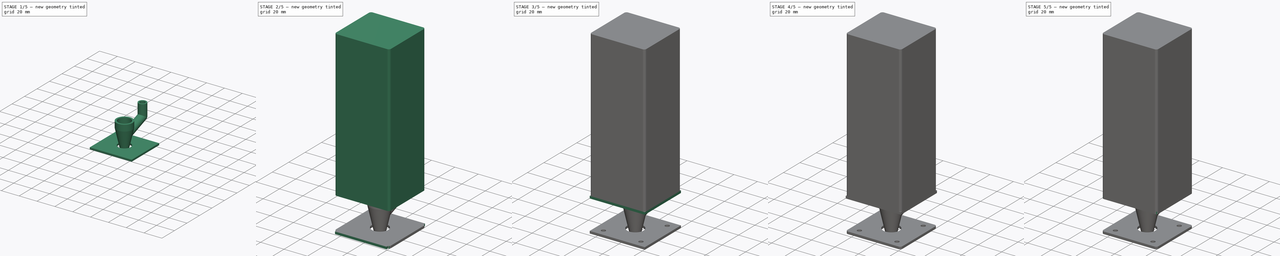
[diagram: build sequence overview — one tinted view per stage of 5, left to right]
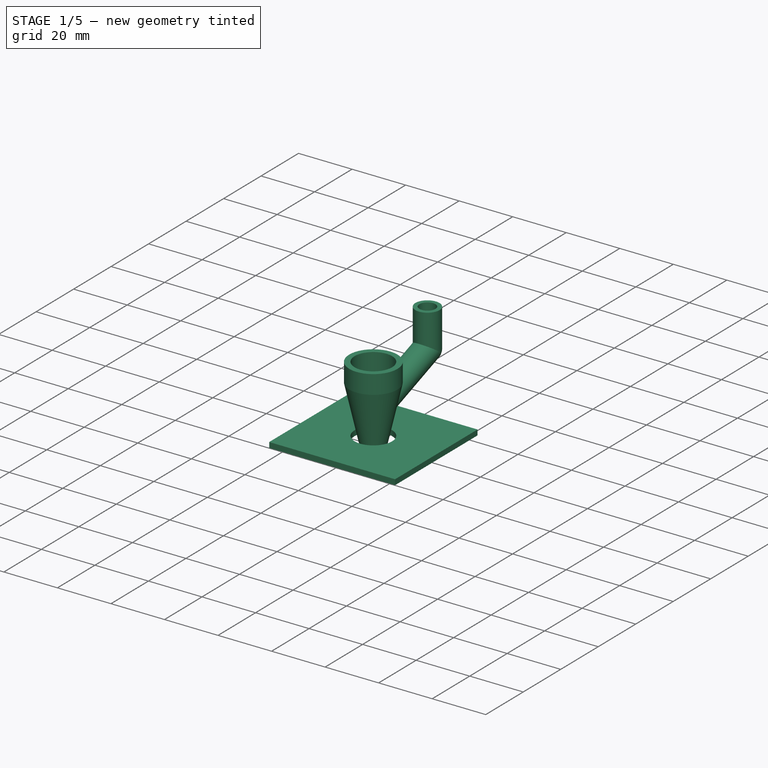
[diagram: stage 1 of 5 — iso view after this stage's code; geometry added in this stage tinted green]
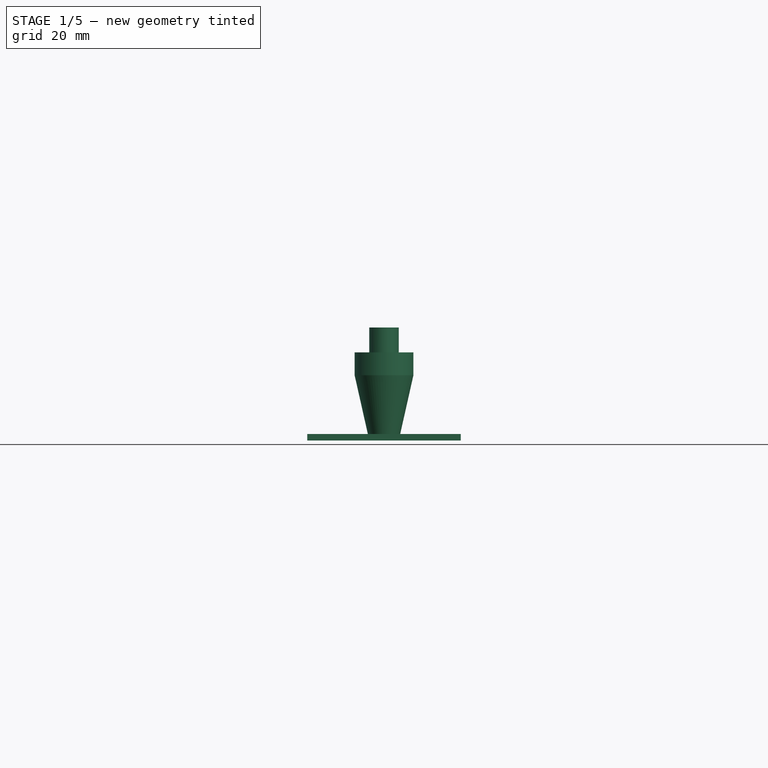
[diagram: stage 1 of 5 — front view after this stage's code; geometry added in this stage tinted green]
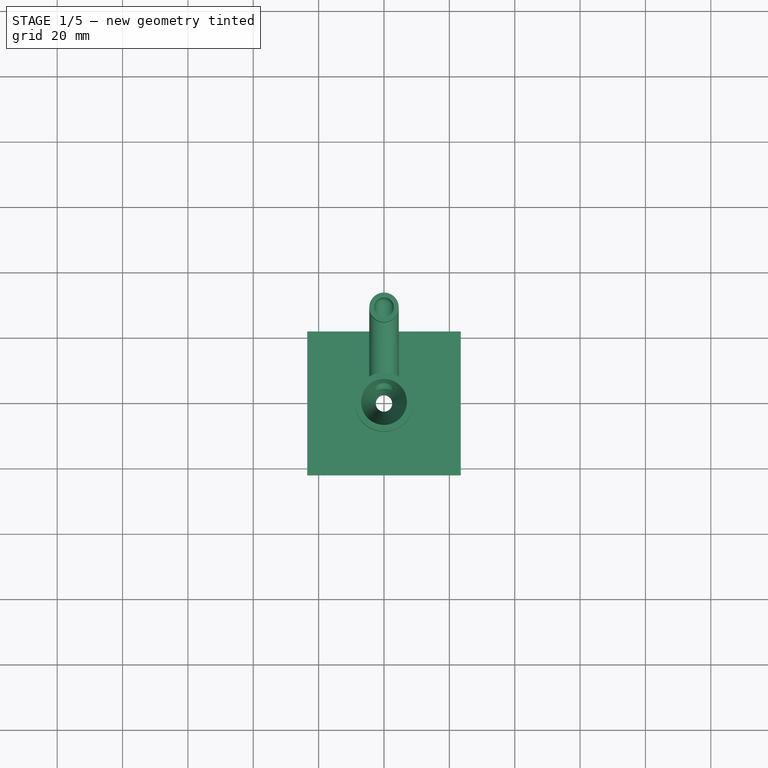
[diagram: stage 1 of 5 — top view after this stage's code; geometry added in this stage tinted green]
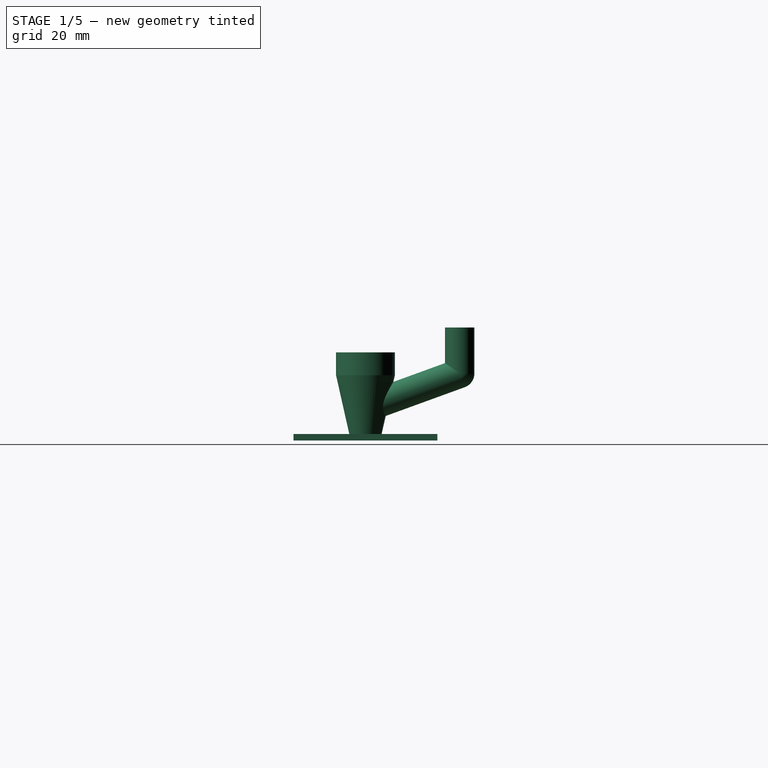
[diagram: stage 1 of 5 — right view after this stage's code; geometry added in this stage tinted green]
FCSTD DOCUMENT  (FreeCAD 0.19R24366 (Git))
Label: Air-Assist
License: All rights reserved
LicenseURL: http://en.wikipedia.org/wiki/All_rights_reserved
objects: Sketcher::SketchObject×21, PartDesign::Hole×8, PartDesign::Body×7, PartDesign::Pad×5, PartDesign::Plane×5, Part::Cone×4, Part::FeaturePython×4, PartDesign::Pocket×4, PartDesign::LinearPattern×4, Part::MultiFuse×3, Part::MultiCommon×3, Part::Cut×2, PartDesign::AdditivePipe×2, Part::Fillet×2, App::Part×2, Part::Box×1, PartDesign::Fillet×1
note: 96 computed .brp shape members not serialized (recipe doc carries the construction recipe); baked Part::Feature solids carry a one-line shape summary decoded from their .brp

FEATURE [Sketcher::SketchObject] Sketch019
  FullyConstrained = true
  MapMode = 5
  Support = -> [XY_Plane007]
  sketch-geometry (4):
    g0: LineSegment StartX=23.5 StartY=-22 StartZ=0 EndX=-23.5 EndY=-22 EndZ=0
    g1: LineSegment StartX=-23.5 StartY=-22 StartZ=0 EndX=-23.5 EndY=22 EndZ=0
    g2: LineSegment StartX=-23.5 StartY=22 StartZ=0 EndX=23.5 EndY=22 EndZ=0
    g3: LineSegment StartX=23.5 StartY=22 StartZ=0 EndX=23.5 EndY=-22 EndZ=0
  constraints (12):
    c: Coincident(g0,g1)
    c: Coincident(g1,g2)
    c: Coincident(g2,g3)
    c: Coincident(g3,g0)
    c: Horizontal(g0)
    c: Horizontal(g2)
    c: Vertical(g1)
    c: Vertical(g3)
    c: DistanceX(g-1,g2) = 23.5
    c: DistanceX(g1,g2) = 47
    c: DistanceY(g0,g2) = 44
    c: DistanceY(g-1,g2) = 22
FEATURE [PartDesign::Pad] Pad004
  Direction = (1,1,1)
  Length = 2
  Length2 = 100
  Profile = -> Sketch019
  Type = 0
FEATURE [PartDesign::Plane] DatumPlane004
  Length = 60
  MapMode = 5
  Placement = pos=(0,0,2) rot=(0,0,1;0rad)
  ResizeMode = 0
  Support = -> [Pad004]
  Width = 60
FEATURE [Sketcher::SketchObject] Sketch017
  FullyConstrained = true
  MapMode = 5
  Placement = pos=(0,0,2) rot=(0,0,1;0rad)
  Support = -> [DatumPlane004]
  sketch-geometry (4):
    g0: Circle CenterX=-16 CenterY=16 CenterZ=0 NormalX=0 NormalY=0 NormalZ=1 AngleXU=0 Radius=2
    g1: Circle CenterX=16 CenterY=16 CenterZ=0 NormalX=0 NormalY=0 NormalZ=1 AngleXU=0 Radius=2
    g2: Circle CenterX=-16 CenterY=-16 CenterZ=0 NormalX=0 NormalY=0 NormalZ=1 AngleXU=0 Radius=2
    g3: Circle CenterX=16 CenterY=-16 CenterZ=0 NormalX=0 NormalY=0 NormalZ=1 AngleXU=0 Radius=2
  constraints (12):
    c: DistanceX(g0,g-1) = 16
    c: DistanceY(g-1,g0) = 16
    c: DistanceX(g-1,g1) = 16
    c: DistanceY(g-1,g1) = 16
    c: DistanceY(g3,g-1) = 16
    c: DistanceY(g2,g-1) = 16
    c: DistanceX(g2,g-1) = 16
    c: DistanceX(g-1,g3) = 16
    c: Radius(g3) = 2
    c: Radius(g1) = 2
    c: Radius(g0) = 2
    c: Radius(g2) = 2
FEATURE [Sketcher::SketchObject] Sketch018
  FullyConstrained = true
  MapMode = 5
  Placement = pos=(0,0,2) rot=(0,0,1;0rad)
  Support = -> [DatumPlane004]
  sketch-geometry (1):
    g0: Circle CenterX=0 CenterY=0 CenterZ=0 NormalX=0 NormalY=0 NormalZ=1 AngleXU=0 Radius=6.5
  constraints (2):
    c: Coincident(g0,g-1)
    c: Radius(g0) = 6.5
FEATURE [PartDesign::Hole] Hole008  label="Laser-Head-Hole-13mm004"
  BaseFeature = -> Pad004
  Depth = 25
  DepthType = 0
  Diameter = 14
  DrillForDepth = false
  DrillPoint = 1
  DrillPointAngle = 118
  HoleCutCountersinkAngle = 90
  HoleCutCustomValues = false
  HoleCutDepth = 0
  HoleCutDiameter = 0
  HoleCutType = 0
  ModelActualThread = false
  Profile = -> Sketch018
  Tapered = false
  TaperedAngle = 90
  ThreadAngle = 0
  ThreadClass = 0
  ThreadCutOffInner = 0
  ThreadCutOffOuter = 0
  ThreadDirection = 0
  ThreadFit = 0
  ThreadPitch = 0
  ThreadSize = 0
  ThreadType = 0
  Threaded = false
FEATURE [PartDesign::Body] Body005  label="Plate-To-Be-Edited"
  Group = -> [Sketch019,Pad004,DatumPlane004,Sketch018,Hole008,Sketch017,Hole007,Fillet002]
  Origin = -> Origin007
  Placement = pos=(0,0,27) rot=(0,0,1;3.14159rad)
  Tip = -> Fillet002
FEATURE [Part::Cone] Cone002
  Angle = 360
  AttacherType = Attacher::AttachEngine3D
  Height = 20
  Radius1 = 2.5
  Radius2 = 7
FEATURE [Sketcher::SketchObject] Sketch020
  FullyConstrained = false
  MapMode = 5
  Placement = pos=(0,0,0) rot=(0.57735,0.57735,0.57735;2.0944rad)
  Support = -> [YZ_Plane008]
  sketch-geometry (2):
    g0: LineSegment StartX=0 StartY=20 StartZ=0 EndX=28 EndY=20 EndZ=0
    g1: LineSegment StartX=28 StartY=20 StartZ=0 EndX=32.8072 EndY=33.2076 EndZ=0
  constraints (6):
    c: PointOnObject(g0,g-2)
    c: Coincident(g0,g1)
    c: DistanceY(g-1,g0) = 20
    c: Horizontal(g0)
    c: Angle(g1,g0) = 1.91986
    c: DistanceX(g0,g0) = 28
FEATURE [Part::Cone] Cone003
  Angle = 360
  AttacherType = Attacher::AttachEngine3D
  Height = 20
  Radius1 = 4.5
  Radius2 = 9
FEATURE [Part::Cut] Cut001
  Base = -> Cone003
  Tool = -> Cone002
FEATURE [Part::FeaturePython] Tube001  # WARN: FeaturePython — macro-defined, semantics opaque (R4)
  AttacherType = Attacher::AttachEngine3D
  Height = 7
  InnerRadius = 7
  OuterRadius = 9
  Placement = pos=(0,0,20) rot=(0,0,1;0rad)
FEATURE [Part::MultiFuse] Fusion002  label="Air-Cap001"
  Shapes = -> [Cut001,Tube001]
FEATURE [Sketcher::SketchObject] Sketch021
  FullyConstrained = true
  MapMode = 5
  Placement = pos=(0,0,0) rot=(1,0,0;1.5708rad)
  Support = -> [XZ_Plane008]
  sketch-geometry (2):
    g0: Circle CenterX=0 CenterY=20 CenterZ=0 NormalX=0 NormalY=0 NormalZ=1 AngleXU=0 Radius=3
    g1: Circle CenterX=0 CenterY=20 CenterZ=0 NormalX=0 NormalY=0 NormalZ=1 AngleXU=0 Radius=4.5
  constraints (5):
    c: PointOnObject(g0,g-2)
    c: DistanceY(g-1,g0) = 20
    c: Radius(g0) = 3
    c: Coincident(g1,g0)
    c: Radius(g1) = 4.5
FEATURE [PartDesign::AdditivePipe] AdditivePipe001
  AuxilleryCurvelinear = true
  AuxillerySpineTangent = false
  Binormal = (0,0,0)
  Mode = 0
  Placement = pos=(0,0,0) rot=(1,0,0;1.5708rad)
  Profile = -> Sketch021
  Spine = -> Sketch020 [Edge1,Edge2]
  SpineTangent = false
  Transformation = 0
  Transition = 2
FEATURE [PartDesign::Body] Body006  label="Air-Pipe001"
  Group = -> [Sketch021,Sketch020,AdditivePipe001]
  Origin = -> Origin008
  Placement = pos=(0,9.37702,-7.81638) rot=(1,0,0;0.349066rad)
  Tip = -> AdditivePipe001
FEATURE [Part::FeaturePython] Connect001  label="Air-Assist-Duplicate"  # WARN: FeaturePython — macro-defined, semantics opaque (R4)
  Objects = -> [Fusion002,Body006]
  Tolerance = 0
FEATURE [App::Part] Part001  label="Duplicate for edition"
  Group = -> [Body006,Fusion002,Cone002,Cut001,Cone003,Tube001,Connect001,Body005]
  Origin = -> Origin009
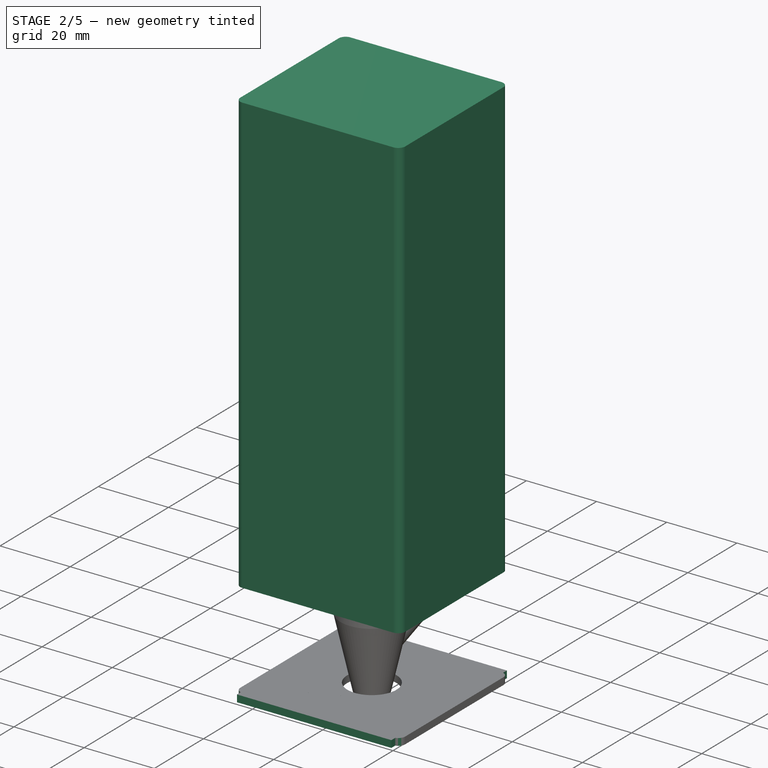
[diagram: stage 2 of 5 — iso view after this stage's code; geometry added in this stage tinted green]
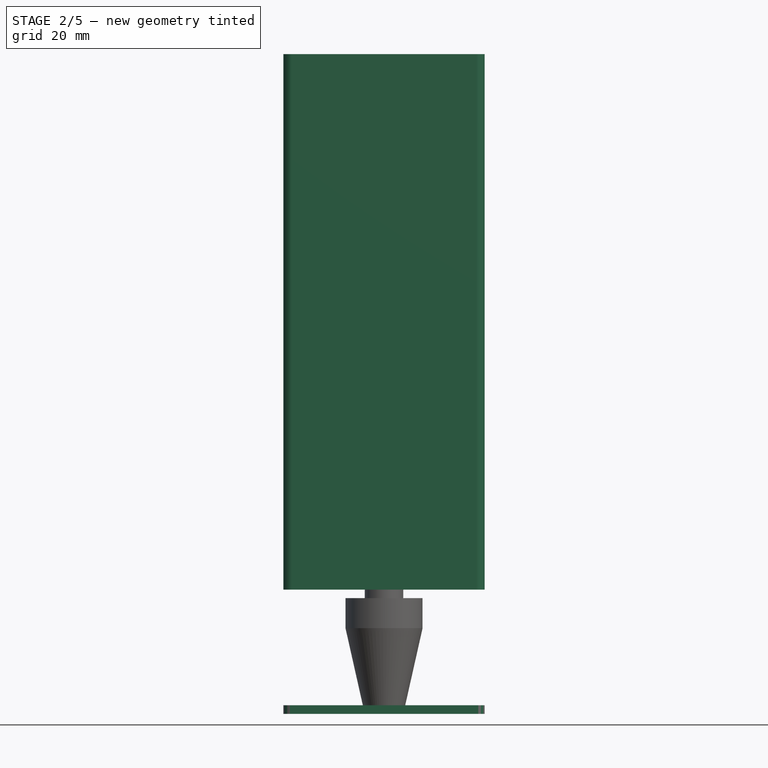
[diagram: stage 2 of 5 — front view after this stage's code; geometry added in this stage tinted green]
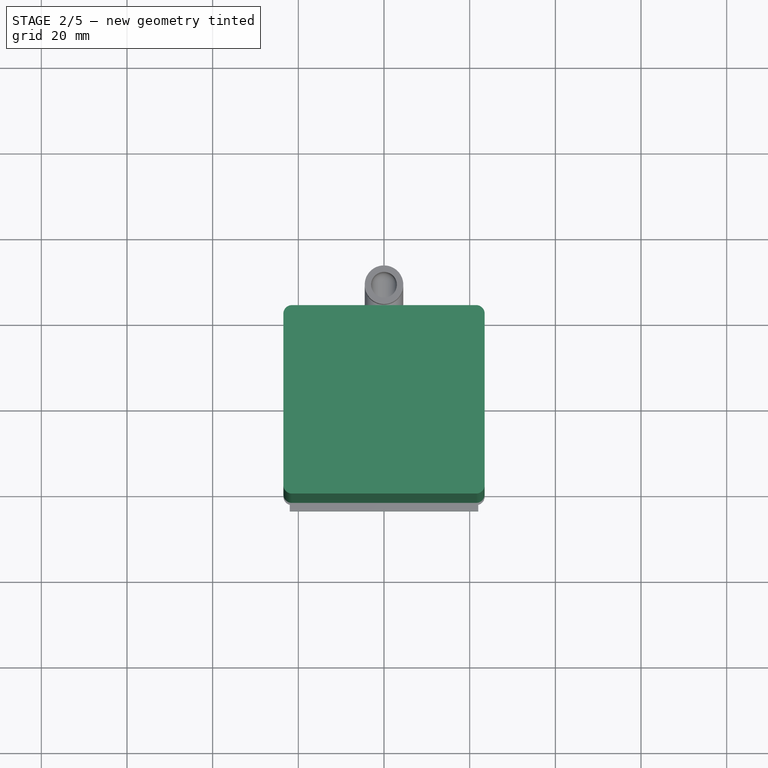
[diagram: stage 2 of 5 — top view after this stage's code; geometry added in this stage tinted green]
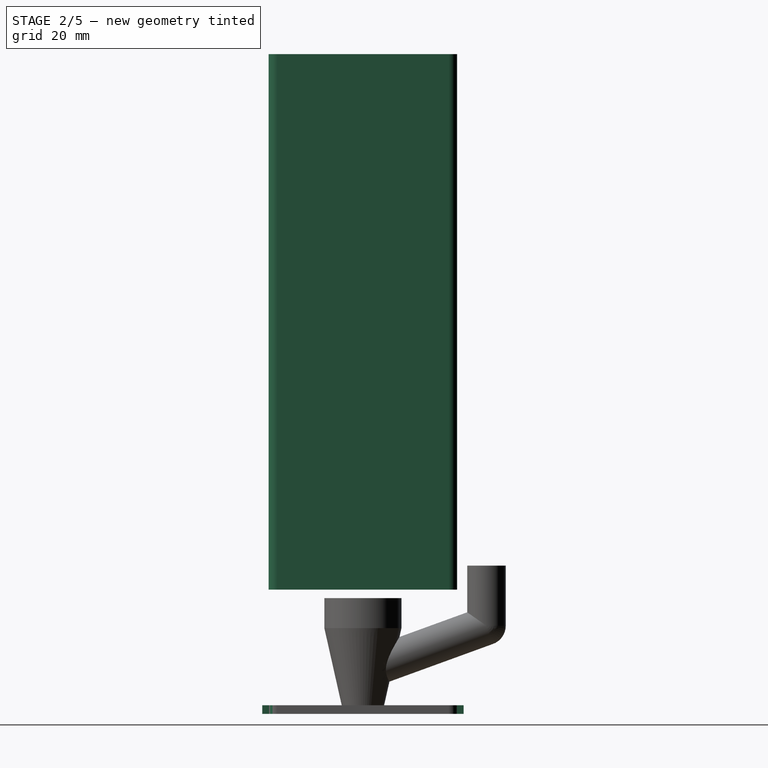
[diagram: stage 2 of 5 — right view after this stage's code; geometry added in this stage tinted green]
FEATURE [PartDesign::Body] Body003  label="Plate-copy001"
  Group = -> [Sketch013,Pad002,DatumPlane002,Sketch012,Hole005,Sketch010,Pocket002,LinearPattern002]
  Origin = -> Origin005
  Placement = pos=(0,0,27) rot=(0,0,-1;1.5708rad)
  Tip = -> LinearPattern002
FEATURE [Sketcher::SketchObject] Sketch016
  FullyConstrained = true
  MapMode = 5
  Support = -> [XY_Plane006]
  sketch-geometry (4):
    g0: LineSegment StartX=22 StartY=-23.5 StartZ=0 EndX=-22 EndY=-23.5 EndZ=0
    g1: LineSegment StartX=-22 StartY=-23.5 StartZ=0 EndX=-22 EndY=23.5 EndZ=0
    g2: LineSegment StartX=-22 StartY=23.5 StartZ=0 EndX=22 EndY=23.5 EndZ=0
    g3: LineSegment StartX=22 StartY=23.5 StartZ=0 EndX=22 EndY=-23.5 EndZ=0
  constraints (12):
    c: Coincident(g0,g1)
    c: Coincident(g1,g2)
    c: Coincident(g2,g3)
    c: Coincident(g3,g0)
    c: Horizontal(g0)
    c: Horizontal(g2)
    c: Vertical(g1)
    c: Vertical(g3)
    c: DistanceX(g-1,g2) = 22
    c: DistanceX(g1,g2) = 44
    c: DistanceY(g0,g2) = 47
    c: DistanceY(g-1,g2) = 23.5
FEATURE [PartDesign::Pad] Pad003
  Direction = (1,1,1)
  Length = 2
  Length2 = 100
  Profile = -> Sketch016
  Type = 0
FEATURE [PartDesign::Plane] DatumPlane003
  Length = 60
  MapMode = 5
  Placement = pos=(0,0,2) rot=(0,0,1;0rad)
  ResizeMode = 0
  Support = -> [Pad003]
  Width = 60
FEATURE [Sketcher::SketchObject] Sketch014
  FullyConstrained = true
  MapMode = 5
  Placement = pos=(0,0,2) rot=(0,0,1;0rad)
  Support = -> [DatumPlane003]
  sketch-geometry (1):
    g0: Circle CenterX=0 CenterY=0 CenterZ=0 NormalX=0 NormalY=0 NormalZ=1 AngleXU=0 Radius=6.5
  constraints (2):
    c: Coincident(g0,g-1)
    c: Radius(g0) = 6.5
FEATURE [PartDesign::Hole] Hole006  label="Laser-Head-Hole-13mm003"
  BaseFeature = -> Pad003
  Depth = 25
  DepthType = 0
  Diameter = 14
  DrillForDepth = false
  DrillPoint = 1
  DrillPointAngle = 118
  HoleCutCountersinkAngle = 90
  HoleCutCustomValues = false
  HoleCutDepth = 0
  HoleCutDiameter = 0
  HoleCutType = 0
  ModelActualThread = false
  Profile = -> Sketch014
  Tapered = false
  TaperedAngle = 90
  ThreadAngle = 0
  ThreadClass = 0
  ThreadCutOffInner = 0
  ThreadCutOffOuter = 0
  ThreadDirection = 0
  ThreadFit = 0
  ThreadPitch = 0
  ThreadSize = 0
  ThreadType = 0
  Threaded = false
FEATURE [Sketcher::SketchObject] Sketch015
  FullyConstrained = false
  MapMode = 5
  Placement = pos=(0,0,2) rot=(0,0,1;0rad)
  Support = -> [DatumPlane003]
  sketch-geometry (4):
    g0: ArcOfCircle CenterX=-10.9803 CenterY=-17.753 CenterZ=0 NormalX=0 NormalY=0 NormalZ=1 AngleXU=0 Radius=1.02137 StartAngle=3.14159 EndAngle=6.28319
    g1: ArcOfCircle CenterX=-10.9803 CenterY=-11.1965 CenterZ=0 NormalX=0 NormalY=0 NormalZ=1 AngleXU=0 Radius=1.02137 StartAngle=2e-16 EndAngle=3.14159
    g2: LineSegment StartX=-9.95895 StartY=-17.753 StartZ=0 EndX=-9.95895 EndY=-11.1965 EndZ=0
    g3: LineSegment StartX=-12.0017 StartY=-17.753 StartZ=0 EndX=-12.0017 EndY=-11.1965 EndZ=0
  constraints (6):
    c: Tangent(g0,g3) = 1.5708
    c: Tangent(g0,g2) = -1.5708
    c: Tangent(g2,g1) = -1.5708
    c: Tangent(g3,g1) = 1.5708
    c: Vertical(g2)
    c: Equal(g0,g1)
FEATURE [PartDesign::Pocket] Pocket003
  BaseFeature = -> Hole006
  Length = 2
  Length2 = 100
  Profile = -> Sketch015
  Type = 0
FEATURE [PartDesign::LinearPattern] LinearPattern003
  BaseFeature = -> Pocket003
  Direction = -> Sketch015 [H_Axis]
  Length = 22
  Occurrences = 8
  Originals = -> [Pocket003]
FEATURE [Part::Box] Box  label="Cube"
  AttacherType = Attacher::AttachEngine3D
  Height = 125
  Length = 47
  Placement = pos=(-23.5,-22,29) rot=(0,0,1;0rad)
  Width = 44
FEATURE [PartDesign::Hole] Hole007  label="Connection-Holes-M005"
  BaseFeature = -> Hole008
  Depth = 25
  DepthType = 0
  Diameter = 3.6
  DrillForDepth = false
  DrillPoint = 1
  DrillPointAngle = 118
  HoleCutCountersinkAngle = 90
  HoleCutCustomValues = false
  HoleCutDepth = 0
  HoleCutDiameter = 6.1
  HoleCutType = 0
  ModelActualThread = false
  Profile = -> Sketch017
  Tapered = false
  TaperedAngle = 90
  ThreadAngle = 0
  ThreadClass = 0
  ThreadCutOffInner = 0
  ThreadCutOffOuter = 0
  ThreadDirection = 0
  ThreadFit = 2
  ThreadPitch = 0
  ThreadSize = 9
  ThreadType = 1
  Threaded = false
FEATURE [Part::Fillet] Fillet001  label="LaserModule"
  Base = -> Box
  Edges = 4 edges r=2: [Edge1,Edge3,Edge5,Edge7]
FEATURE [App::Part] Part  label="Air-Assist"
  Group = -> [Cone,Cone001,Cut,Tube,Body,Fusion,Connect,Body002,Common001,Common,Common002,Body004,Body003,Body001,Fillet,Fusion001,Box,Fillet001]
  Origin = -> Origin
FEATURE [PartDesign::Fillet] Fillet002
  Base = -> Hole007 [Edge2,Edge1,Edge5,Edge8]
  BaseFeature = -> Hole007
  Radius = 2
  SupportTransform = false
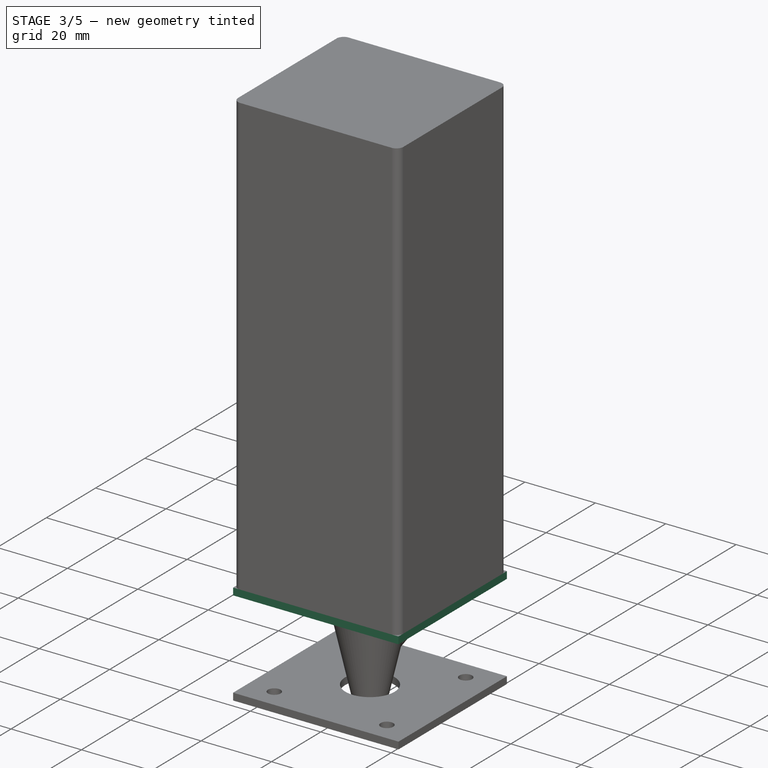
[diagram: stage 3 of 5 — iso view after this stage's code; geometry added in this stage tinted green]
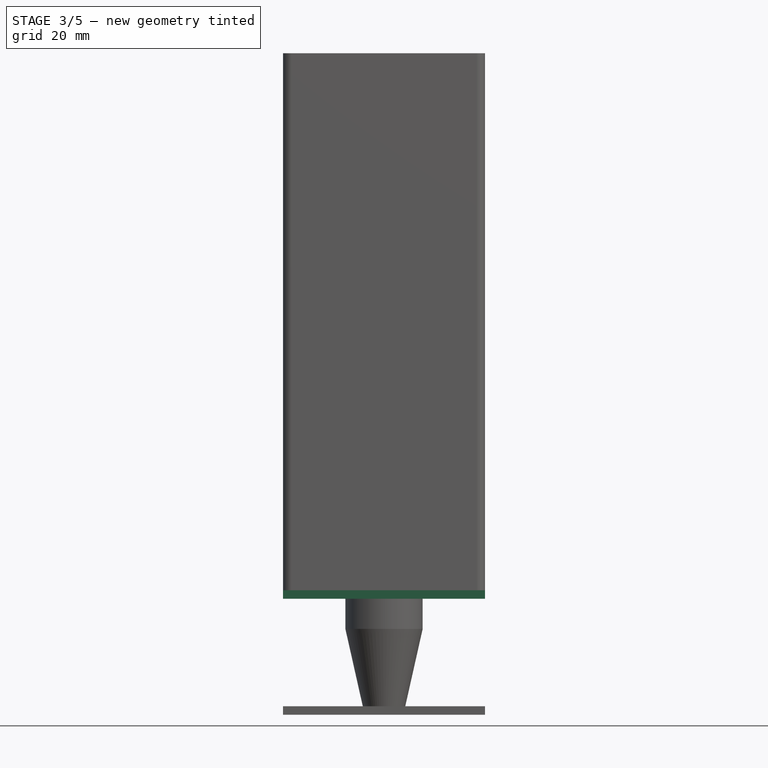
[diagram: stage 3 of 5 — front view after this stage's code; geometry added in this stage tinted green]
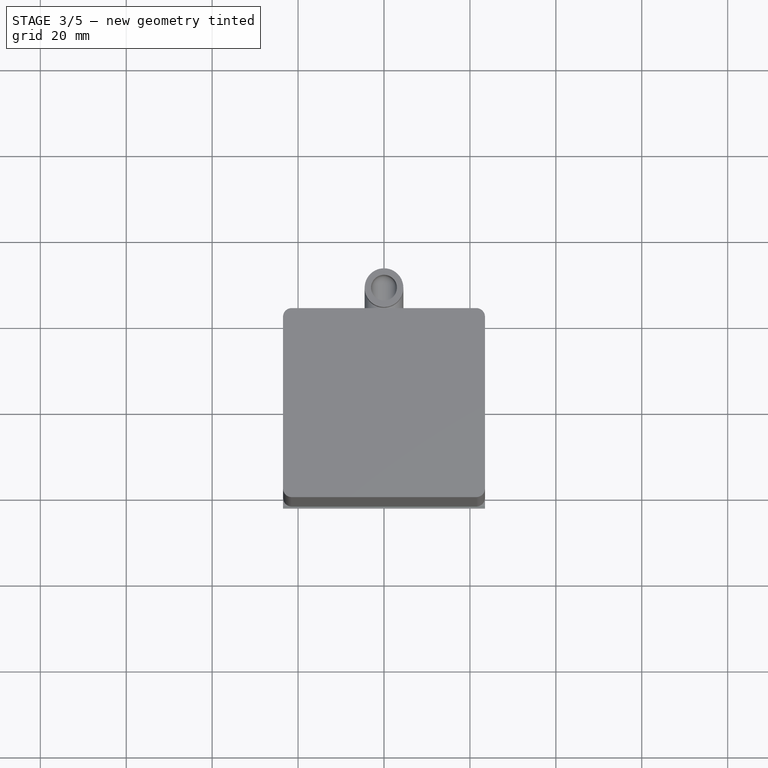
[diagram: stage 3 of 5 — top view after this stage's code; geometry added in this stage tinted green]
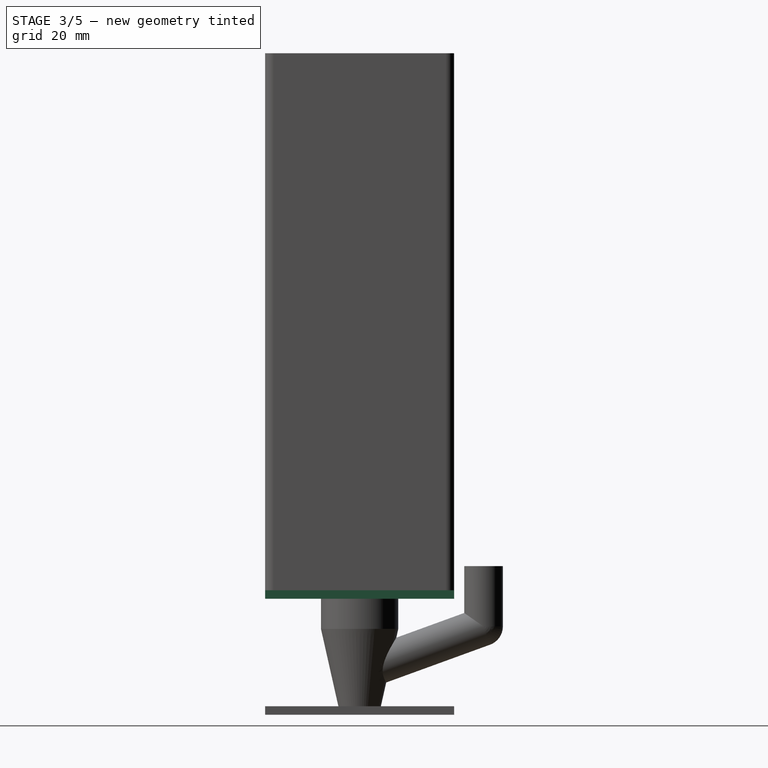
[diagram: stage 3 of 5 — right view after this stage's code; geometry added in this stage tinted green]
FEATURE [PartDesign::Body] Body001  label="Plate"
  Group = -> [Sketch002,Pad,DatumPlane,Sketch003,Hole,Sketch004,Hole001,Sketch005,Pocket,LinearPattern]
  Origin = -> Origin003
  Placement = pos=(0,0,27) rot=(0,0,1;0rad)
  Tip = -> LinearPattern
FEATURE [Sketcher::SketchObject] Sketch007
  FullyConstrained = true
  MapMode = 5
  Support = -> [XY_Plane004]
  sketch-geometry (4):
    g0: LineSegment StartX=23.5 StartY=-22 StartZ=0 EndX=-23.5 EndY=-22 EndZ=0
    g1: LineSegment StartX=-23.5 StartY=-22 StartZ=0 EndX=-23.5 EndY=22 EndZ=0
    g2: LineSegment StartX=-23.5 StartY=22 StartZ=0 EndX=23.5 EndY=22 EndZ=0
    g3: LineSegment StartX=23.5 StartY=22 StartZ=0 EndX=23.5 EndY=-22 EndZ=0
  constraints (12):
    c: Coincident(g0,g1)
    c: Coincident(g1,g2)
    c: Coincident(g2,g3)
    c: Coincident(g3,g0)
    c: Horizontal(g0)
    c: Horizontal(g2)
    c: Vertical(g1)
    c: Vertical(g3)
    c: DistanceX(g-1,g2) = 23.5
    c: DistanceX(g1,g2) = 47
    c: DistanceY(g0,g2) = 44
    c: DistanceY(g-1,g2) = 22
FEATURE [PartDesign::Pad] Pad001
  Direction = (1,1,1)
  Length = 2
  Length2 = 100
  Profile = -> Sketch007
  Type = 0
FEATURE [PartDesign::Plane] DatumPlane001
  Length = 60
  MapMode = 5
  Placement = pos=(0,0,2) rot=(0,0,1;0rad)
  ResizeMode = 0
  Support = -> [Pad001]
  Width = 60
FEATURE [Sketcher::SketchObject] Sketch006
  FullyConstrained = false
  MapMode = 5
  Placement = pos=(0,0,2) rot=(0,0,1;0rad)
  Support = -> [DatumPlane001]
  sketch-geometry (4):
    g0: ArcOfCircle CenterX=-10.9803 CenterY=-17.753 CenterZ=0 NormalX=0 NormalY=0 NormalZ=1 AngleXU=0 Radius=1.02137 StartAngle=3.14159 EndAngle=6.28319
    g1: ArcOfCircle CenterX=-10.9803 CenterY=-11.1965 CenterZ=0 NormalX=0 NormalY=0 NormalZ=1 AngleXU=0 Radius=1.02137 StartAngle=2e-16 EndAngle=3.14159
    g2: LineSegment StartX=-9.95895 StartY=-17.753 StartZ=0 EndX=-9.95895 EndY=-11.1965 EndZ=0
    g3: LineSegment StartX=-12.0017 StartY=-17.753 StartZ=0 EndX=-12.0017 EndY=-11.1965 EndZ=0
  constraints (6):
    c: Tangent(g0,g3) = 1.5708
    c: Tangent(g0,g2) = -1.5708
    c: Tangent(g2,g1) = -1.5708
    c: Tangent(g3,g1) = 1.5708
    c: Vertical(g2)
    c: Equal(g0,g1)
FEATURE [Sketcher::SketchObject] Sketch008
  FullyConstrained = true
  MapMode = 5
  Placement = pos=(0,0,2) rot=(0,0,1;0rad)
  Support = -> [DatumPlane001]
  sketch-geometry (4):
    g0: Circle CenterX=-16 CenterY=16 CenterZ=0 NormalX=0 NormalY=0 NormalZ=1 AngleXU=0 Radius=2
    g1: Circle CenterX=16 CenterY=16 CenterZ=0 NormalX=0 NormalY=0 NormalZ=1 AngleXU=0 Radius=2
    g2: Circle CenterX=-16 CenterY=-16 CenterZ=0 NormalX=0 NormalY=0 NormalZ=1 AngleXU=0 Radius=2
    g3: Circle CenterX=16 CenterY=-16 CenterZ=0 NormalX=0 NormalY=0 NormalZ=1 AngleXU=0 Radius=2
  constraints (12):
    c: DistanceX(g0,g-1) = 16
    c: DistanceY(g-1,g0) = 16
    c: DistanceX(g-1,g1) = 16
    c: DistanceY(g-1,g1) = 16
    c: DistanceY(g3,g-1) = 16
    c: DistanceY(g2,g-1) = 16
    c: DistanceX(g2,g-1) = 16
    c: DistanceX(g-1,g3) = 16
    c: Radius(g3) = 2
    c: Radius(g1) = 2
    c: Radius(g0) = 2
    c: Radius(g2) = 2
FEATURE [Sketcher::SketchObject] Sketch009
  FullyConstrained = true
  MapMode = 5
  Placement = pos=(0,0,2) rot=(0,0,1;0rad)
  Support = -> [DatumPlane001]
  sketch-geometry (1):
    g0: Circle CenterX=0 CenterY=0 CenterZ=0 NormalX=0 NormalY=0 NormalZ=1 AngleXU=0 Radius=6.5
  constraints (2):
    c: Coincident(g0,g-1)
    c: Radius(g0) = 6.5
FEATURE [PartDesign::Hole] Hole002  label="Laser-Head-Hole-13mm001"
  BaseFeature = -> Pad001
  Depth = 25
  DepthType = 0
  Diameter = 14
  DrillForDepth = false
  DrillPoint = 1
  DrillPointAngle = 118
  HoleCutCountersinkAngle = 90
  HoleCutCustomValues = false
  HoleCutDepth = 0
  HoleCutDiameter = 0
  HoleCutType = 0
  ModelActualThread = false
  Profile = -> Sketch009
  Tapered = false
  TaperedAngle = 90
  ThreadAngle = 0
  ThreadClass = 0
  ThreadCutOffInner = 0
  ThreadCutOffOuter = 0
  ThreadDirection = 0
  ThreadFit = 0
  ThreadPitch = 0
  ThreadSize = 0
  ThreadType = 0
  Threaded = false
FEATURE [PartDesign::Hole] Hole003  label="Connection-Holes-M004"
  BaseFeature = -> Hole002
  Depth = 25
  DepthType = 0
  Diameter = 3.6
  DrillForDepth = false
  DrillPoint = 1
  DrillPointAngle = 118
  HoleCutCountersinkAngle = 90
  HoleCutCustomValues = false
  HoleCutDepth = 0
  HoleCutDiameter = 6.1
  HoleCutType = 0
  ModelActualThread = false
  Profile = -> Sketch008
  Tapered = false
  TaperedAngle = 90
  ThreadAngle = 0
  ThreadClass = 0
  ThreadCutOffInner = 0
  ThreadCutOffOuter = 0
  ThreadDirection = 0
  ThreadFit = 2
  ThreadPitch = 0
  ThreadSize = 9
  ThreadType = 1
  Threaded = false
FEATURE [PartDesign::Pocket] Pocket001
  BaseFeature = -> Hole003
  Length = 2
  Length2 = 100
  Profile = -> Sketch006
  Type = 0
FEATURE [Sketcher::SketchObject] Sketch013
  FullyConstrained = true
  MapMode = 5
  Support = -> [XY_Plane005]
  sketch-geometry (4):
    g0: LineSegment StartX=22 StartY=-23.5 StartZ=0 EndX=-22 EndY=-23.5 EndZ=0
    g1: LineSegment StartX=-22 StartY=-23.5 StartZ=0 EndX=-22 EndY=23.5 EndZ=0
    g2: LineSegment StartX=-22 StartY=23.5 StartZ=0 EndX=22 EndY=23.5 EndZ=0
    g3: LineSegment StartX=22 StartY=23.5 StartZ=0 EndX=22 EndY=-23.5 EndZ=0
  constraints (12):
    c: Coincident(g0,g1)
    c: Coincident(g1,g2)
    c: Coincident(g2,g3)
    c: Coincident(g3,g0)
    c: Horizontal(g0)
    c: Horizontal(g2)
    c: Vertical(g1)
    c: Vertical(g3)
    c: DistanceX(g-1,g2) = 22
    c: DistanceX(g1,g2) = 44
    c: DistanceY(g0,g2) = 47
    c: DistanceY(g-1,g2) = 23.5
FEATURE [PartDesign::Pad] Pad002
  Direction = (1,1,1)
  Length = 2
  Length2 = 100
  Profile = -> Sketch013
  Type = 0
FEATURE [PartDesign::Plane] DatumPlane002
  Length = 60
  MapMode = 5
  Placement = pos=(0,0,2) rot=(0,0,1;0rad)
  ResizeMode = 0
  Support = -> [Pad002]
  Width = 60
FEATURE [Sketcher::SketchObject] Sketch010
  FullyConstrained = false
  MapMode = 5
  Placement = pos=(0,0,2) rot=(0,0,1;0rad)
  Support = -> [DatumPlane002]
  sketch-geometry (4):
    g0: ArcOfCircle CenterX=-10.9803 CenterY=-17.753 CenterZ=0 NormalX=0 NormalY=0 NormalZ=1 AngleXU=0 Radius=1.02137 StartAngle=3.14159 EndAngle=6.28319
    g1: ArcOfCircle CenterX=-10.9803 CenterY=-11.1965 CenterZ=0 NormalX=0 NormalY=0 NormalZ=1 AngleXU=0 Radius=1.02137 StartAngle=2e-16 EndAngle=3.14159
    g2: LineSegment StartX=-9.95895 StartY=-17.753 StartZ=0 EndX=-9.95895 EndY=-11.1965 EndZ=0
    g3: LineSegment StartX=-12.0017 StartY=-17.753 StartZ=0 EndX=-12.0017 EndY=-11.1965 EndZ=0
  constraints (6):
    c: Tangent(g0,g3) = 1.5708
    c: Tangent(g0,g2) = -1.5708
    c: Tangent(g2,g1) = -1.5708
    c: Tangent(g3,g1) = 1.5708
    c: Vertical(g2)
    c: Equal(g0,g1)
FEATURE [Sketcher::SketchObject] Sketch012
  FullyConstrained = true
  MapMode = 5
  Placement = pos=(0,0,2) rot=(0,0,1;0rad)
  Support = -> [DatumPlane002]
  sketch-geometry (1):
    g0: Circle CenterX=0 CenterY=0 CenterZ=0 NormalX=0 NormalY=0 NormalZ=1 AngleXU=0 Radius=6.5
  constraints (2):
    c: Coincident(g0,g-1)
    c: Radius(g0) = 6.5
FEATURE [PartDesign::Hole] Hole005  label="Laser-Head-Hole-13mm002"
  BaseFeature = -> Pad002
  Depth = 25
  DepthType = 0
  Diameter = 14
  DrillForDepth = false
  DrillPoint = 1
  DrillPointAngle = 118
  HoleCutCountersinkAngle = 90
  HoleCutCustomValues = false
  HoleCutDepth = 0
  HoleCutDiameter = 0
  HoleCutType = 0
  ModelActualThread = false
  Profile = -> Sketch012
  Tapered = false
  TaperedAngle = 90
  ThreadAngle = 0
  ThreadClass = 0
  ThreadCutOffInner = 0
  ThreadCutOffOuter = 0
  ThreadDirection = 0
  ThreadFit = 0
  ThreadPitch = 0
  ThreadSize = 0
  ThreadType = 0
  Threaded = false
FEATURE [PartDesign::Pocket] Pocket002
  BaseFeature = -> Hole005
  Length = 2
  Length2 = 100
  Profile = -> Sketch010
  Type = 0
FEATURE [PartDesign::LinearPattern] LinearPattern002
  BaseFeature = -> Pocket002
  Direction = -> Sketch010 [H_Axis]
  Length = 22
  Occurrences = 8
  Originals = -> [Pocket002]
FEATURE [PartDesign::Body] Body004  label="Plate-copy002"
  Group = -> [Sketch016,Pad003,DatumPlane003,Sketch014,Hole006,Sketch015,Pocket003,LinearPattern003]
  Origin = -> Origin006
  Placement = pos=(0,0,27) rot=(0,0,1;1.5708rad)
  Tip = -> LinearPattern003
FEATURE [Part::MultiCommon] Common001
  Shapes = -> [Body003,Body004]
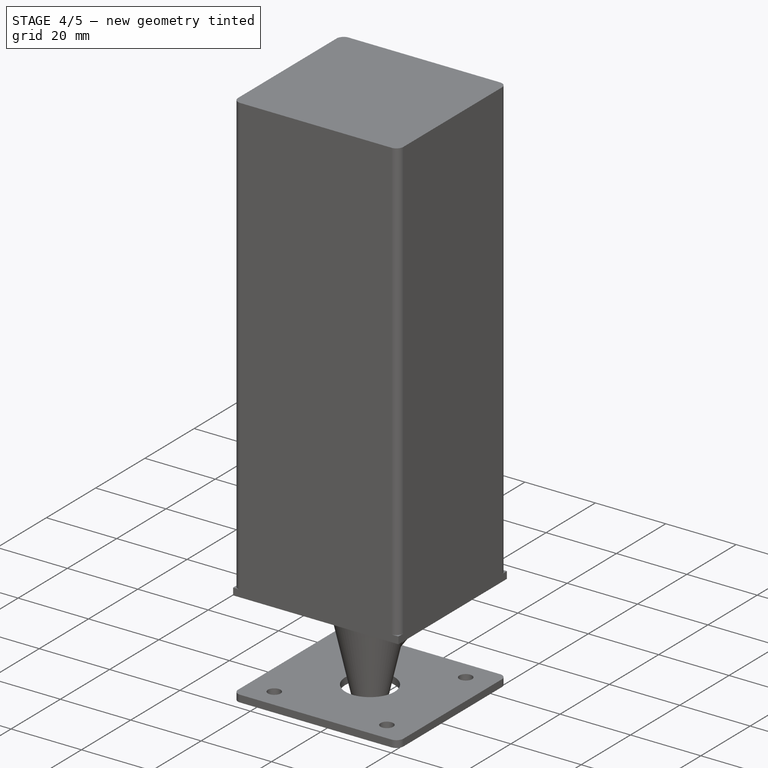
[diagram: stage 4 of 5 — iso view after this stage's code; geometry added in this stage tinted green]
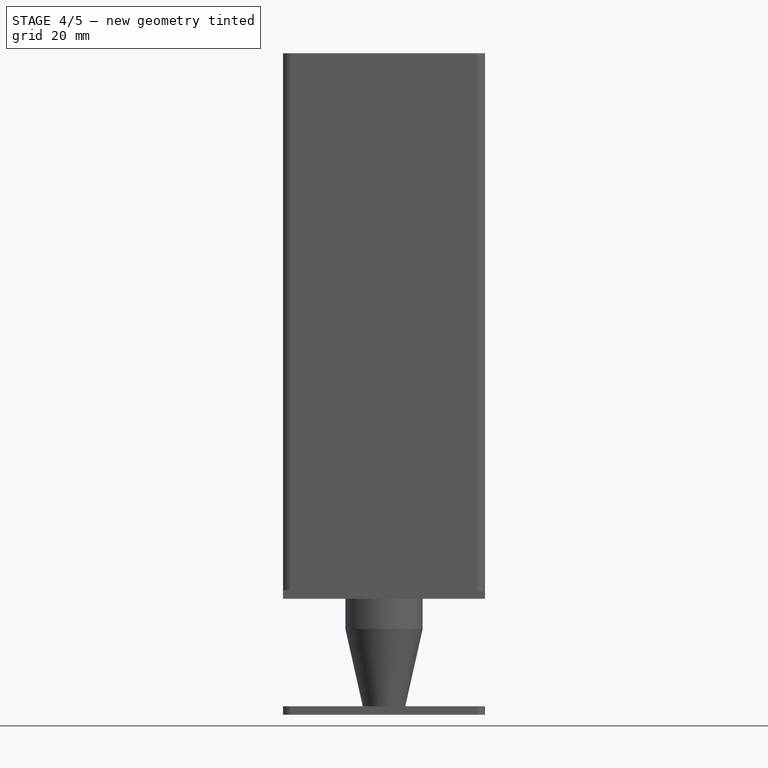
[diagram: stage 4 of 5 — front view after this stage's code; geometry added in this stage tinted green]
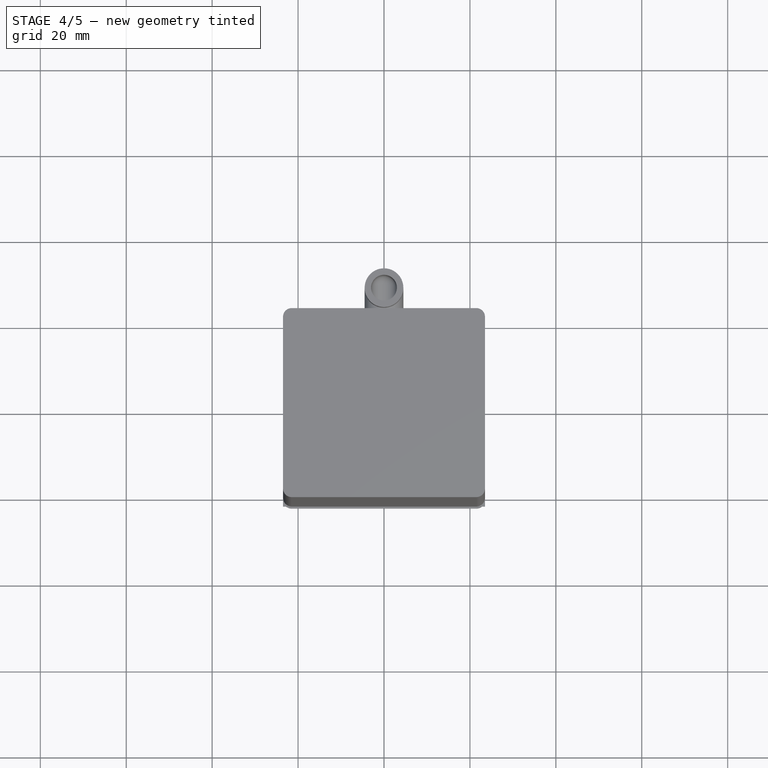
[diagram: stage 4 of 5 — top view after this stage's code; geometry added in this stage tinted green]
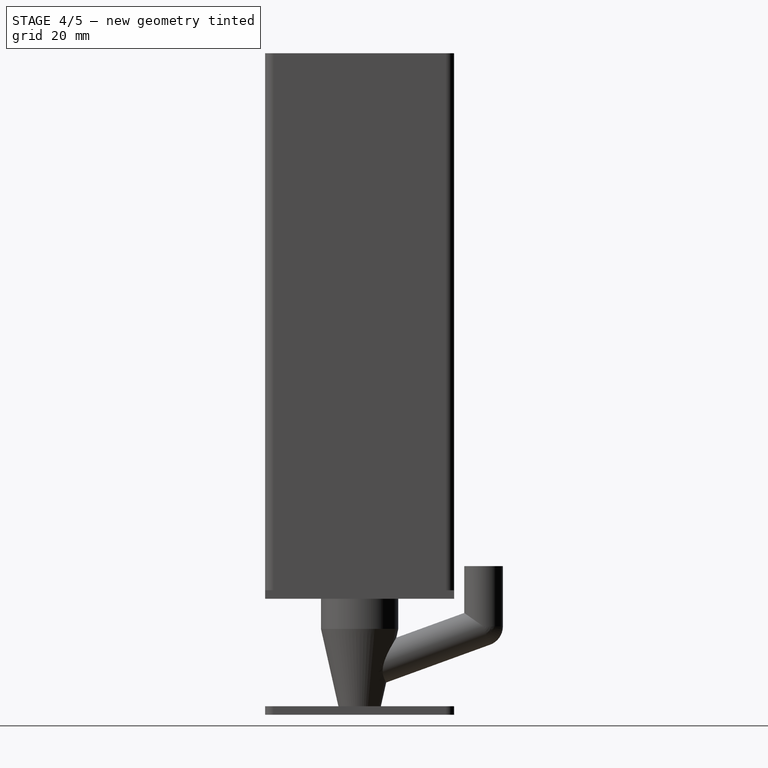
[diagram: stage 4 of 5 — right view after this stage's code; geometry added in this stage tinted green]
FEATURE [Sketcher::SketchObject] Sketch002
  FullyConstrained = true
  MapMode = 5
  Support = -> [XY_Plane003]
  sketch-geometry (4):
    g0: LineSegment StartX=23.5 StartY=-22 StartZ=0 EndX=-23.5 EndY=-22 EndZ=0
    g1: LineSegment StartX=-23.5 StartY=-22 StartZ=0 EndX=-23.5 EndY=22 EndZ=0
    g2: LineSegment StartX=-23.5 StartY=22 StartZ=0 EndX=23.5 EndY=22 EndZ=0
    g3: LineSegment StartX=23.5 StartY=22 StartZ=0 EndX=23.5 EndY=-22 EndZ=0
  constraints (12):
    c: Coincident(g0,g1)
    c: Coincident(g1,g2)
    c: Coincident(g2,g3)
    c: Coincident(g3,g0)
    c: Horizontal(g0)
    c: Horizontal(g2)
    c: Vertical(g1)
    c: Vertical(g3)
    c: DistanceX(g-1,g2) = 23.5
    c: DistanceX(g1,g2) = 47
    c: DistanceY(g0,g2) = 44
    c: DistanceY(g-1,g2) = 22
FEATURE [PartDesign::Pad] Pad
  Direction = (1,1,1)
  Length = 2
  Length2 = 100
  Profile = -> Sketch002
  Type = 0
FEATURE [PartDesign::Plane] DatumPlane
  Length = 60
  MapMode = 5
  Placement = pos=(0,0,2) rot=(0,0,1;0rad)
  ResizeMode = 0
  Support = -> [Pad]
  Width = 60
FEATURE [Sketcher::SketchObject] Sketch003
  FullyConstrained = true
  MapMode = 5
  Placement = pos=(0,0,2) rot=(0,0,1;0rad)
  Support = -> [DatumPlane]
  sketch-geometry (1):
    g0: Circle CenterX=0 CenterY=0 CenterZ=0 NormalX=0 NormalY=0 NormalZ=1 AngleXU=0 Radius=7
  constraints (2):
    c: Coincident(g0,g-1)
    c: Radius(g0) = 7
FEATURE [PartDesign::Hole] Hole  label="Laser-Head-Hole-13mm"
  BaseFeature = -> Pad
  Depth = 25
  DepthType = 0
  Diameter = 14
  DrillForDepth = false
  DrillPoint = 1
  DrillPointAngle = 118
  HoleCutCountersinkAngle = 90
  HoleCutCustomValues = false
  HoleCutDepth = 0
  HoleCutDiameter = 0
  HoleCutType = 0
  ModelActualThread = false
  Profile = -> Sketch003
  Tapered = false
  TaperedAngle = 90
  ThreadAngle = 0
  ThreadClass = 0
  ThreadCutOffInner = 0
  ThreadCutOffOuter = 0
  ThreadDirection = 0
  ThreadFit = 0
  ThreadPitch = 0
  ThreadSize = 0
  ThreadType = 0
  Threaded = false
FEATURE [Sketcher::SketchObject] Sketch004
  FullyConstrained = true
  MapMode = 5
  Placement = pos=(0,0,2) rot=(0,0,1;0rad)
  Support = -> [DatumPlane]
  sketch-geometry (4):
    g0: Circle CenterX=-16 CenterY=16 CenterZ=0 NormalX=0 NormalY=0 NormalZ=1 AngleXU=0 Radius=2
    g1: Circle CenterX=16 CenterY=16 CenterZ=0 NormalX=0 NormalY=0 NormalZ=1 AngleXU=0 Radius=2
    g2: Circle CenterX=-16 CenterY=-16 CenterZ=0 NormalX=0 NormalY=0 NormalZ=1 AngleXU=0 Radius=2
    g3: Circle CenterX=16 CenterY=-16 CenterZ=0 NormalX=0 NormalY=0 NormalZ=1 AngleXU=0 Radius=2
  constraints (12):
    c: DistanceX(g0,g-1) = 16
    c: DistanceY(g-1,g0) = 16
    c: DistanceX(g-1,g1) = 16
    c: DistanceY(g-1,g1) = 16
    c: DistanceY(g3,g-1) = 16
    c: DistanceY(g2,g-1) = 16
    c: DistanceX(g2,g-1) = 16
    c: DistanceX(g-1,g3) = 16
    c: Radius(g3) = 2
    c: Radius(g1) = 2
    c: Radius(g0) = 2
    c: Radius(g2) = 2
FEATURE [PartDesign::Hole] Hole001  label="Connection-Holes-M3"
  BaseFeature = -> Hole
  Depth = 25
  DepthType = 0
  Diameter = 3.6
  DrillForDepth = false
  DrillPoint = 1
  DrillPointAngle = 118
  HoleCutCountersinkAngle = 90
  HoleCutCustomValues = false
  HoleCutDepth = 0
  HoleCutDiameter = 6.1
  HoleCutType = 0
  ModelActualThread = false
  Profile = -> Sketch004
  Tapered = false
  TaperedAngle = 90
  ThreadAngle = 0
  ThreadClass = 0
  ThreadCutOffInner = 0
  ThreadCutOffOuter = 0
  ThreadDirection = 0
  ThreadFit = 2
  ThreadPitch = 0
  ThreadSize = 9
  ThreadType = 1
  Threaded = false
FEATURE [Sketcher::SketchObject] Sketch005
  FullyConstrained = false
  MapMode = 5
  Placement = pos=(0,0,2) rot=(0,0,1;0rad)
  Support = -> [DatumPlane]
  sketch-geometry (4):
    g0: ArcOfCircle CenterX=-10.9803 CenterY=-17.753 CenterZ=0 NormalX=0 NormalY=0 NormalZ=1 AngleXU=0 Radius=1.02137 StartAngle=3.14159 EndAngle=6.28319
    g1: ArcOfCircle CenterX=-10.9803 CenterY=-11.1965 CenterZ=0 NormalX=0 NormalY=0 NormalZ=1 AngleXU=0 Radius=1.02137 StartAngle=2e-16 EndAngle=3.14159
    g2: LineSegment StartX=-9.95895 StartY=-17.753 StartZ=0 EndX=-9.95895 EndY=-11.1965 EndZ=0
    g3: LineSegment StartX=-12.0017 StartY=-17.753 StartZ=0 EndX=-12.0017 EndY=-11.1965 EndZ=0
  constraints (6):
    c: Tangent(g0,g3) = 1.5708
    c: Tangent(g0,g2) = -1.5708
    c: Tangent(g2,g1) = -1.5708
    c: Tangent(g3,g1) = 1.5708
    c: Vertical(g2)
    c: Equal(g0,g1)
FEATURE [PartDesign::Pocket] Pocket
  BaseFeature = -> Hole001
  Length = 2
  Length2 = 100
  Profile = -> Sketch005
  Type = 0
FEATURE [PartDesign::LinearPattern] LinearPattern
  BaseFeature = -> Pocket
  Direction = -> Sketch005 [H_Axis]
  Length = 22
  Occurrences = 8
  Originals = -> [Pocket]
FEATURE [PartDesign::LinearPattern] LinearPattern001
  BaseFeature = -> Pocket001
  Direction = -> Sketch006 [H_Axis]
  Length = 22
  Occurrences = 8
  Originals = -> [Pocket001]
FEATURE [PartDesign::Body] Body002  label="Plate-copy"
  Group = -> [Sketch007,Pad001,DatumPlane001,Sketch009,Hole002,Sketch008,Hole003,Sketch006,Pocket001,LinearPattern001]
  Origin = -> Origin004
  Placement = pos=(0,0,27) rot=(0,0,1;3.14159rad)
  Tip = -> LinearPattern001
FEATURE [Part::MultiCommon] Common  label="Air-holes-2-sides"
  Shapes = -> [Body001,Body002]
FEATURE [Part::MultiCommon] Common002
  Shapes = -> [Common,Common001]
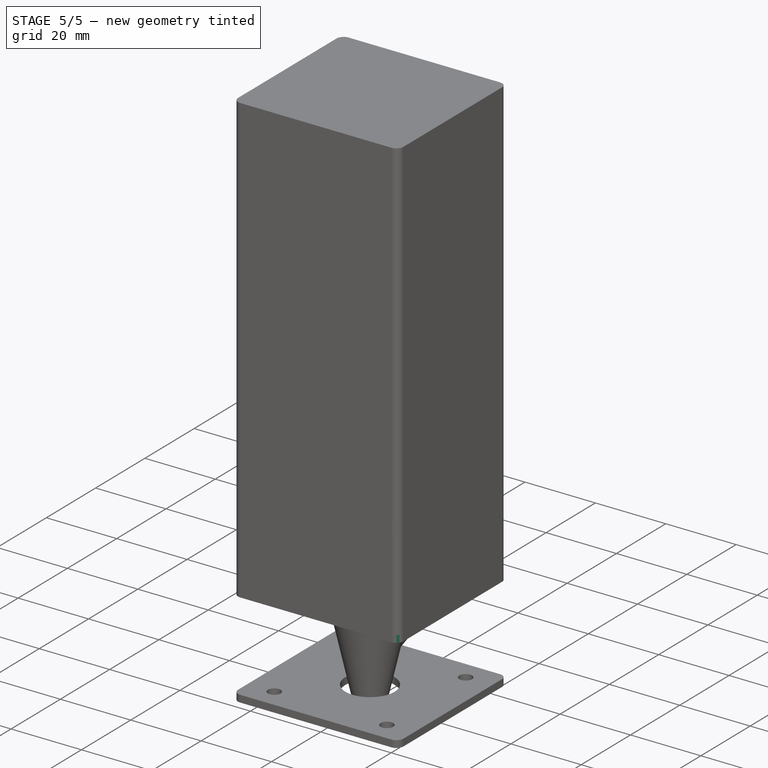
[diagram: stage 5 of 5 — iso view after this stage's code; geometry added in this stage tinted green]
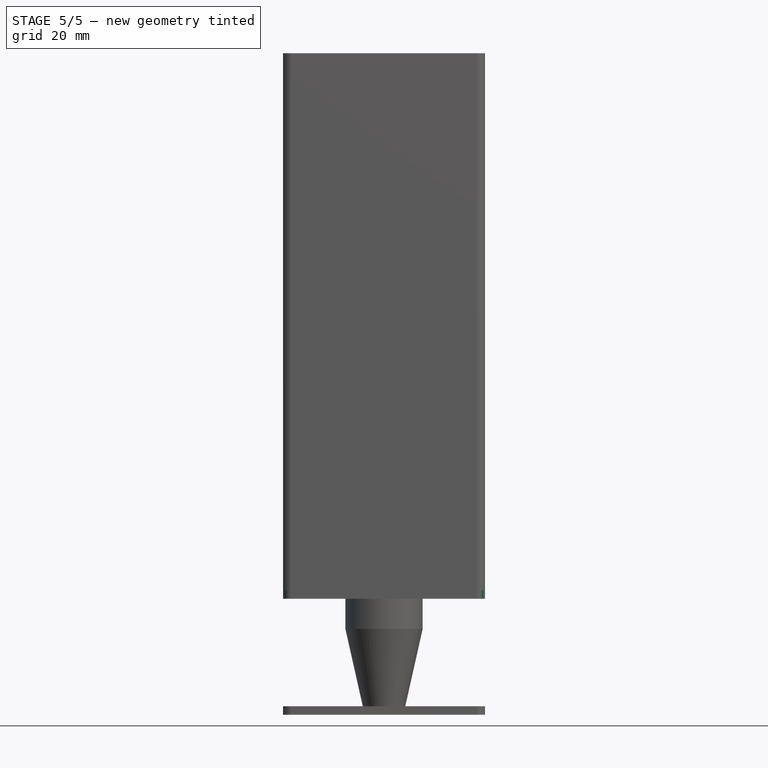
[diagram: stage 5 of 5 — front view after this stage's code; geometry added in this stage tinted green]
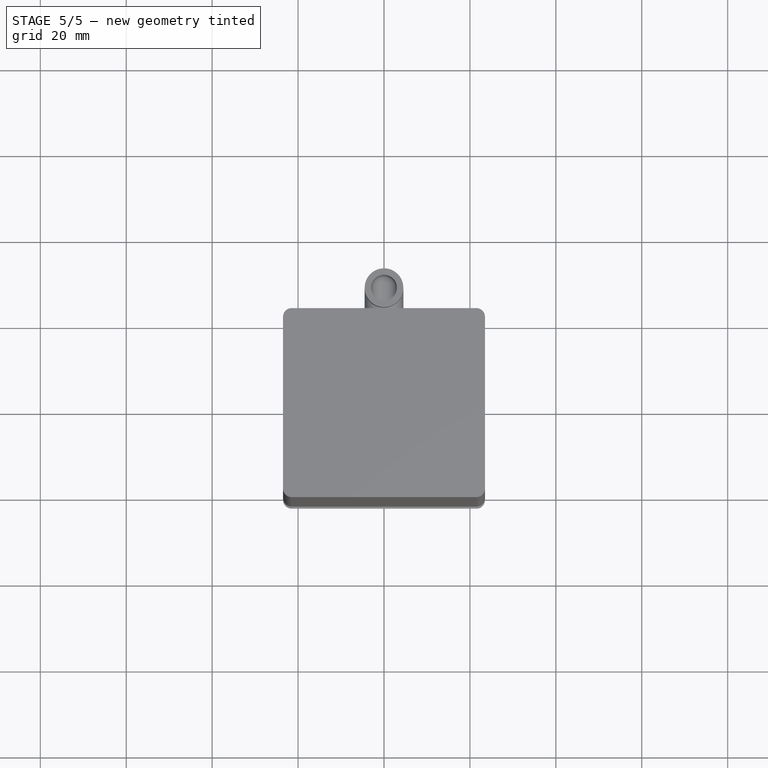
[diagram: stage 5 of 5 — top view after this stage's code; geometry added in this stage tinted green]
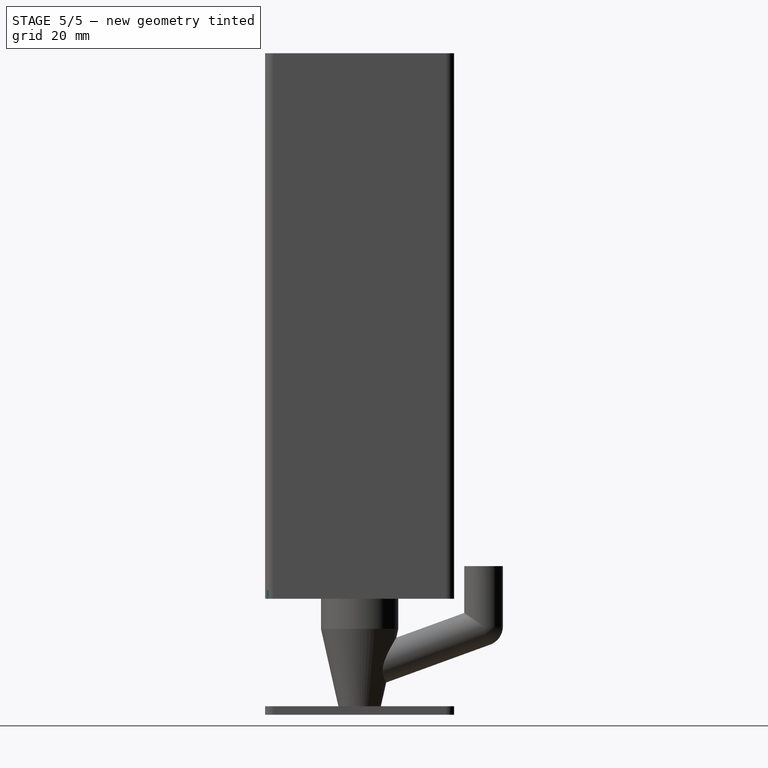
[diagram: stage 5 of 5 — right view after this stage's code; geometry added in this stage tinted green]
FEATURE [Part::Cone] Cone
  Angle = 360
  AttacherType = Attacher::AttachEngine3D
  Height = 20
  Radius1 = 4.5
  Radius2 = 9
FEATURE [Part::Cone] Cone001
  Angle = 360
  AttacherType = Attacher::AttachEngine3D
  Height = 20
  Radius1 = 2.5
  Radius2 = 7
FEATURE [Part::Cut] Cut
  Base = -> Cone
  Tool = -> Cone001
FEATURE [Part::FeaturePython] Tube  # WARN: FeaturePython — macro-defined, semantics opaque (R4)
  AttacherType = Attacher::AttachEngine3D
  Height = 7
  InnerRadius = 7
  OuterRadius = 9
  Placement = pos=(0,0,20) rot=(0,0,1;0rad)
FEATURE [Sketcher::SketchObject] Sketch
  FullyConstrained = true
  MapMode = 5
  Placement = pos=(0,0,0) rot=(1,0,0;1.5708rad)
  Support = -> [XZ_Plane001]
  sketch-geometry (2):
    g0: Circle CenterX=0 CenterY=20 CenterZ=0 NormalX=0 NormalY=0 NormalZ=1 AngleXU=0 Radius=3
    g1: Circle CenterX=0 CenterY=20 CenterZ=0 NormalX=0 NormalY=0 NormalZ=1 AngleXU=0 Radius=4.5
  constraints (5):
    c: PointOnObject(g0,g-2)
    c: DistanceY(g-1,g0) = 20
    c: Radius(g0) = 3
    c: Coincident(g1,g0)
    c: Radius(g1) = 4.5
FEATURE [Sketcher::SketchObject] Sketch001
  FullyConstrained = false
  MapMode = 5
  Placement = pos=(0,0,0) rot=(0.57735,0.57735,0.57735;2.0944rad)
  Support = -> [YZ_Plane001]
  sketch-geometry (2):
    g0: LineSegment StartX=0 StartY=20 StartZ=0 EndX=28 EndY=20 EndZ=0
    g1: LineSegment StartX=28 StartY=20 StartZ=0 EndX=32.8072 EndY=33.2076 EndZ=0
  constraints (6):
    c: PointOnObject(g0,g-2)
    c: Coincident(g0,g1)
    c: DistanceY(g-1,g0) = 20
    c: Horizontal(g0)
    c: Angle(g1,g0) = 1.91986
    c: DistanceX(g0,g0) = 28
FEATURE [Part::MultiFuse] Fusion  label="Air-Cap"
  Shapes = -> [Cut,Tube]
FEATURE [PartDesign::AdditivePipe] AdditivePipe
  AuxilleryCurvelinear = true
  AuxillerySpineTangent = false
  Binormal = (0,0,0)
  Mode = 0
  Placement = pos=(0,0,0) rot=(1,0,0;1.5708rad)
  Profile = -> Sketch
  Spine = -> Sketch001 [Edge1,Edge2]
  SpineTangent = false
  Transformation = 0
  Transition = 2
FEATURE [PartDesign::Body] Body  label="Air-Pipe"
  Group = -> [Sketch,Sketch001,AdditivePipe]
  Origin = -> Origin001
  Placement = pos=(0,9.37702,-7.81638) rot=(1,0,0;0.349066rad)
  Tip = -> AdditivePipe
FEATURE [Part::FeaturePython] Connect  label="Air-Assist-Connected"  # WARN: FeaturePython — macro-defined, semantics opaque (R4)
  Objects = -> [Fusion,Body]
  Tolerance = 0
FEATURE [Part::Fillet] Fillet  label="Connection-Plate"
  Base = -> Common002
  Edges = 4 edges r=2: [Edge1,Edge2,Edge5,Edge8]
FEATURE [Part::MultiFuse] Fusion001  label="AirAssist"
  Refine = true
  Shapes = -> [Connect,Fillet]
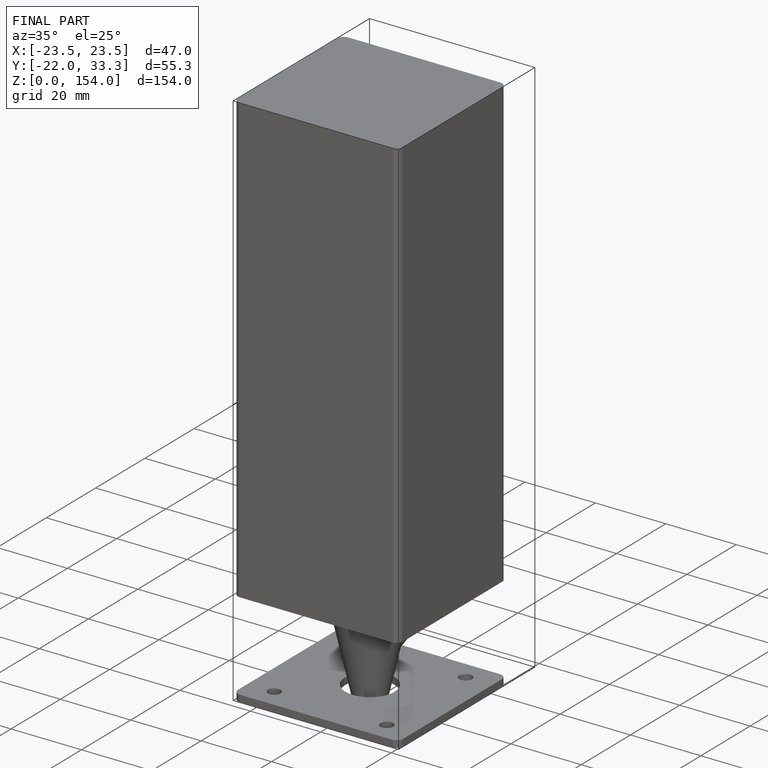
[diagram: finished part — iso view with bounding-box wireframe]
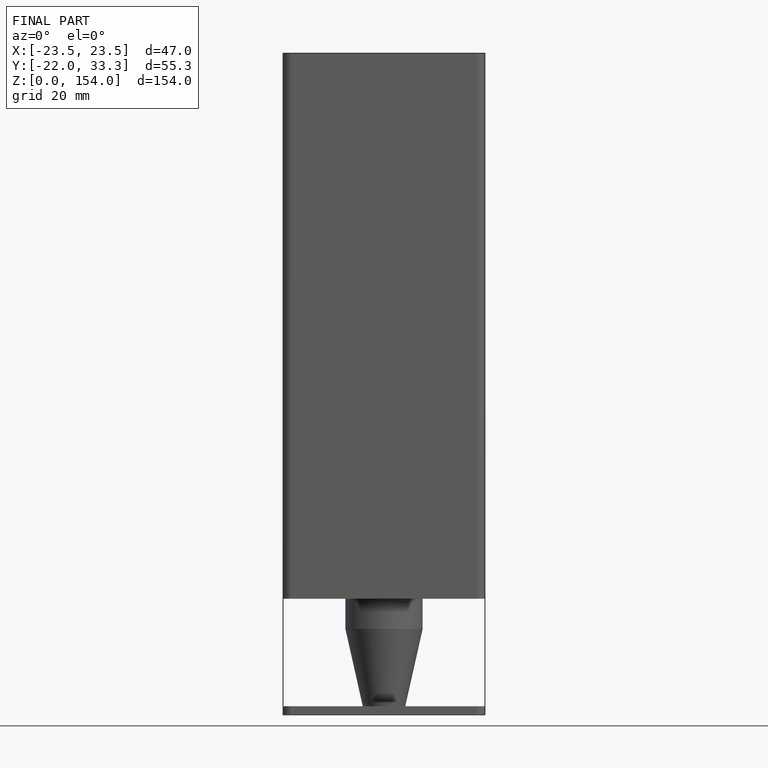
[diagram: finished part — front view with bounding-box wireframe]
